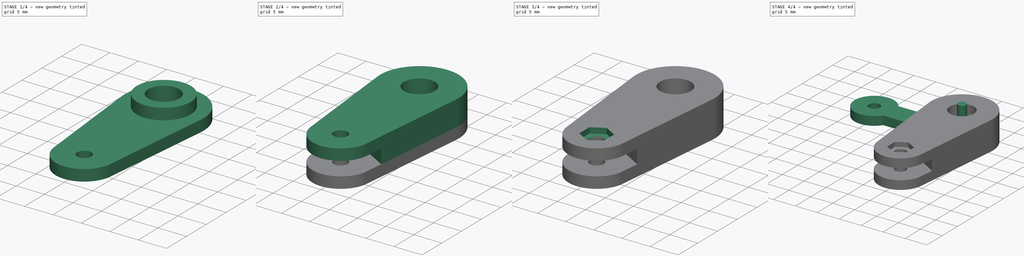
[diagram: build sequence overview — one tinted view per stage of 4, left to right]
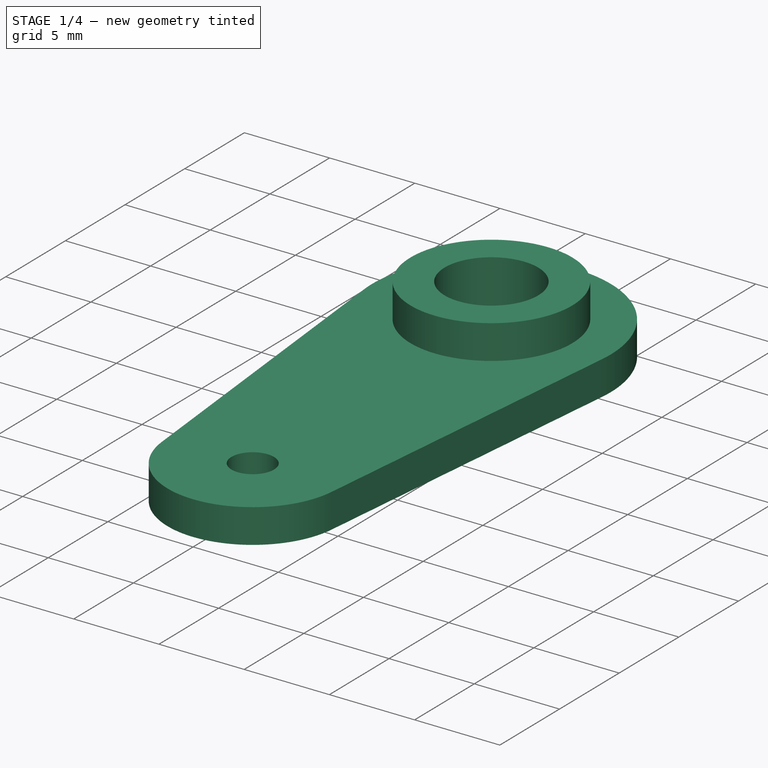
[diagram: stage 1 of 4 — iso view after this stage's code; geometry added in this stage tinted green]
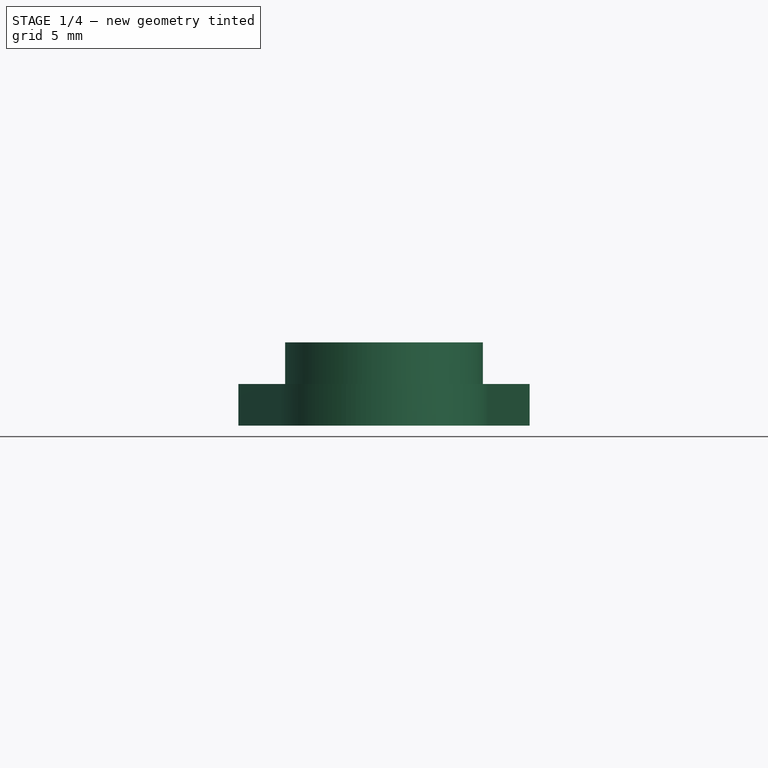
[diagram: stage 1 of 4 — front view after this stage's code; geometry added in this stage tinted green]
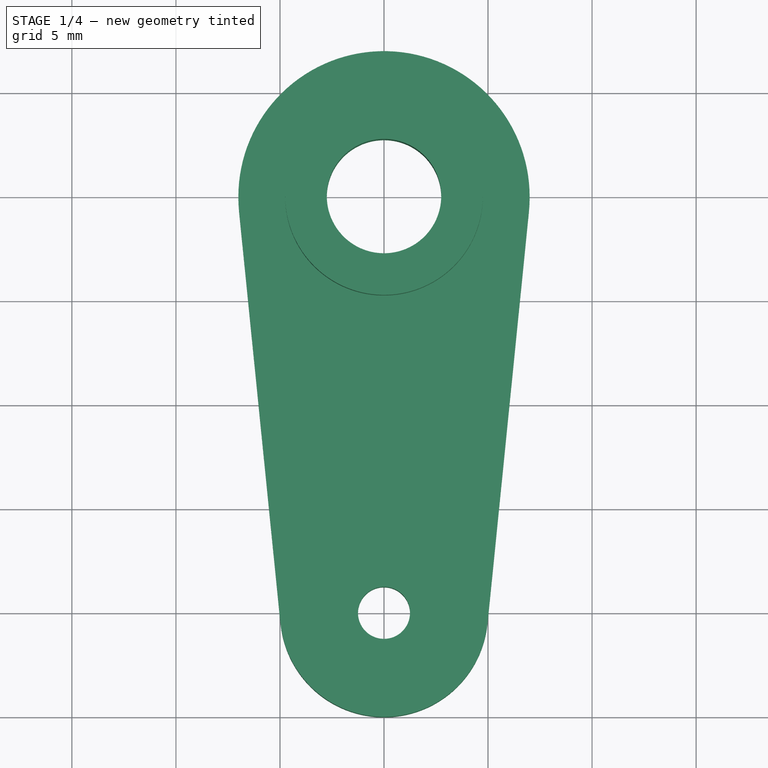
[diagram: stage 1 of 4 — top view after this stage's code; geometry added in this stage tinted green]
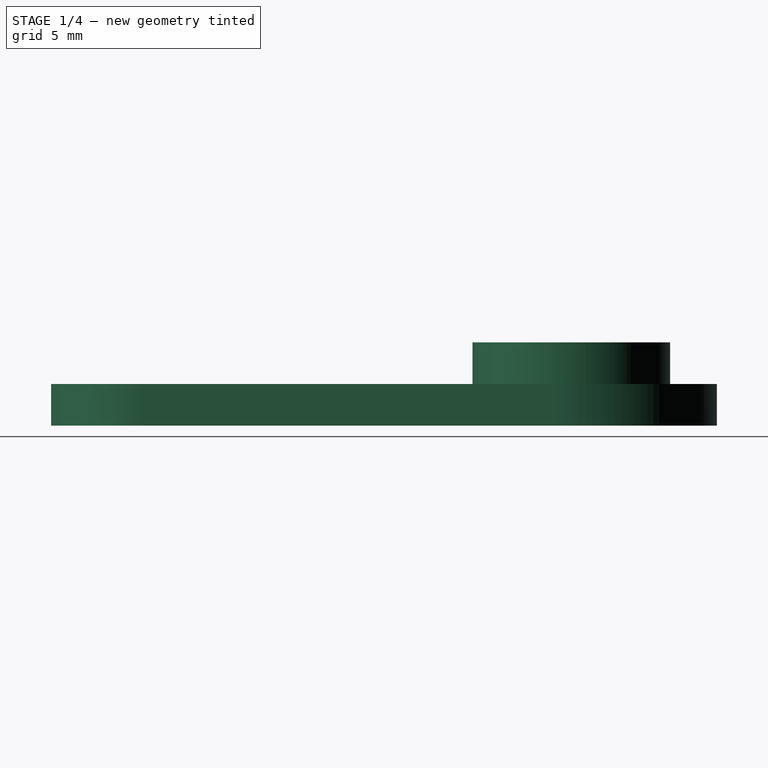
[diagram: stage 1 of 4 — right view after this stage's code; geometry added in this stage tinted green]
FCSTD DOCUMENT  (FreeCAD 0.21R33771 (Git))
Label: remote_case
License: All rights reserved
LicenseURL: https://en.wikipedia.org/wiki/All_rights_reserved
objects: Sketcher::SketchObject×9, PartDesign::Pad×6, PartDesign::Body×5, PartDesign::Plane×3, Part::Feature×1, Spreadsheet::Sheet×1, PartDesign::Revolution×1, PartDesign::Pocket×1, PartDesign::Line×1, PartDesign::Groove×1
note: 37 computed .brp shape members not serialized (recipe doc carries the construction recipe); baked Part::Feature solids carry a one-line shape summary decoded from their .brp

FEATURE [Part::Feature] Part__Feature  label="MG995 v3"
  Placement = pos=(-10,-10,-42.5) rot=(1,0,0;1.5708rad)
  shape: bbox 55.2 x 20 x 46.5 mm, 752 faces, 35 solids (baked)
FEATURE [Sketcher::SketchObject] Sketch
  FullyConstrained = true
  MapMode = 5
  Support = -> [XY_Plane]
  expr: Constraints[10] = <<conf>>.arm_rod_radius
  expr: Constraints[12] = <<conf>>.arm_rotor_internal_diameter
  expr: Constraints[8] = <<conf>>.arm_length
  expr: Constraints[9] = <<conf>>.arm_rotor_radius
  sketch-geometry (6):
    g0: ArcOfCircle CenterX=0 CenterY=0 CenterZ=0 NormalX=0 NormalY=0 NormalZ=1 AngleXU=0 Radius=7 StartAngle=6.18302 EndAngle=9.52495
    g1: ArcOfCircle CenterX=0 CenterY=-20 CenterZ=0 NormalX=0 NormalY=0 NormalZ=1 AngleXU=0 Radius=5 StartAngle=3.24176 EndAngle=6.18302
    g2: LineSegment StartX=-6.96491 StartY=-0.7 StartZ=0 EndX=-4.97494 EndY=-20.5 EndZ=0
    g3: LineSegment StartX=6.96491 StartY=-0.7 StartZ=0 EndX=4.97494 EndY=-20.5 EndZ=0
    g4: Circle CenterX=0 CenterY=0 CenterZ=0 NormalX=0 NormalY=0 NormalZ=1 AngleXU=0 Radius=2.75
    g5: Circle CenterX=0 CenterY=-20 CenterZ=0 NormalX=0 NormalY=0 NormalZ=1 AngleXU=0 Radius=1.25
  constraints (13):
    c: Coincident(g0,g-1)
    c: PointOnObject(g1,g-2)
    c: Tangent(g2,g0) = -1.5708
    c: Tangent(g2,g1) = -1.5708
    c: Tangent(g3,g1) = 1.5708
    c: Tangent(g3,g0) = 1.5708
    c: Coincident(g4,g0)
    c: Coincident(g5,g1)
    c: Distance(g0,g1) = 20
    c: Radius(g0) = 7
    c: Radius(g1) = 5
    c: Diameter(g5) = 2.5
    c: Diameter(g4) = 5.5
FEATURE [Spreadsheet::Sheet] Spreadsheet  label="conf"
  cells = A2='arm_thickness; B2(arm_thickness)==2 mm; A3='arm_length; B3(arm_length)==20 mm; A4='screw_diameter; B4(arm_screw_diameter)==2 mm; A5='rotor_diameter; B5(rotor_diameter)==6 mm; A6='rotor_margin; B6(rotor_margin)==0.5 mm; A7='rotor_length; B7(rotor_length)==4 mm; A8='arm_rotor_internal_diameter; B8(arm_rotor_internal_diameter)==rotor_diameter - rotor_margin; A9='arm_rotor_radius; B9(arm_rotor_radius)==7 mm; A10='arm_rod_radius; B10(arm_rod_radius)==5 mm; A11='arm_dist_a1; B11(arm_dist_a1)==5 mm; A12='arm_inter_thickness; B12(arm_inter_thickness)==2.5 mm; A14='rod_thickness; B14(rod_thickness)==2 mm; A15='rod_end_diameter; B15(rod_end_diameter)==9 mm; A16='rod_length; B16(rod_length)==20 mm; A17='rod_int_diameter; B17(rod_int_diameter)==2.5 mm; A18='rod_width; B18(rod_width)==5 mm; A20='course_max; B20(course_max)==2 * sin(30) * arm_length; A22='screw_length; B22(screw_length)==7.8 mm; A23='screw_diameter; B23(screw_diameter)==1.9 mm; A24='screw_head_height; B24(screw_head_height)==1.2 mm; A25='screw_head_diameter; B25(screw_head_diameter)==3.8 mm; A26='bolt_size; B26(bolt_size)==4 mm; A27='bolt_height; B27(bolt_height)==1.6 mm
FEATURE [PartDesign::Pad] Pad
  Direction = (0,0,1)
  Length = 2
  Length2 = 10
  Profile = -> Sketch
  ReferenceAxis = -> Sketch [N_Axis]
  Type = 0
  expr: Length = <<conf>>.arm_thickness
FEATURE [PartDesign::Plane] DatumPlane  label="DatumArmPlane1"
  Length = 60
  MapMode = 2
  Placement = pos=(0,0,2) rot=(0,0,1;0rad)
  ResizeMode = 0
  Width = 60
  expr: .Placement.Base.z = <<conf>>.arm_thickness
FEATURE [Sketcher::SketchObject] Sketch001  label="SketchArmRotorPipe"
  FullyConstrained = true
  MapMode = 5
  Placement = pos=(0,0,2) rot=(0,0,1;0rad)
  Support = -> [DatumPlane]
  expr: Constraints[2] = <<conf>>.arm_rotor_internal_diameter
  expr: Constraints[3] = <<conf>>.arm_rotor_internal_diameter + 2 * <<conf>>.arm_thickness
  sketch-geometry (2):
    g0: Circle CenterX=0 CenterY=0 CenterZ=0 NormalX=0 NormalY=0 NormalZ=1 AngleXU=0 Radius=2.75
    g1: Circle CenterX=0 CenterY=0 CenterZ=0 NormalX=0 NormalY=0 NormalZ=1 AngleXU=0 Radius=4.75
  constraints (4):
    c: Coincident(g0,g-1)
    c: Coincident(g1,g0)
    c: Diameter(g0) = 5.5
    c: Diameter(g1) = 9.5
FEATURE [PartDesign::Pad] Pad001  label="PadArmRotorPipe"
  BaseFeature = -> Pad
  Direction = (0,0,1)
  Length = 2
  Length2 = 10
  Profile = -> Sketch001
  ReferenceAxis = -> Sketch001 [N_Axis]
  Type = 0
  expr: Length = <<conf>>.rotor_length - <<conf>>.arm_thickness
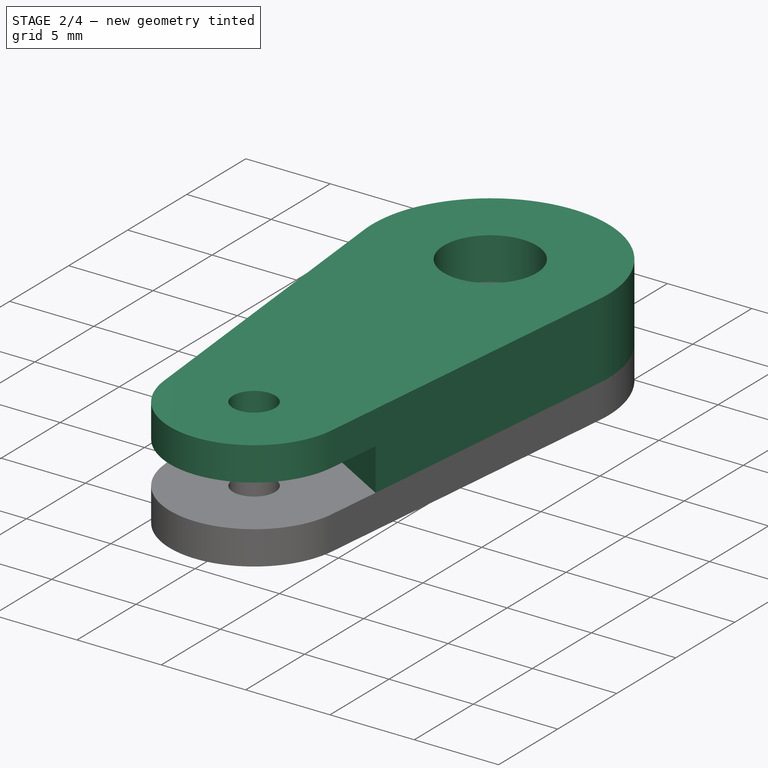
[diagram: stage 2 of 4 — iso view after this stage's code; geometry added in this stage tinted green]
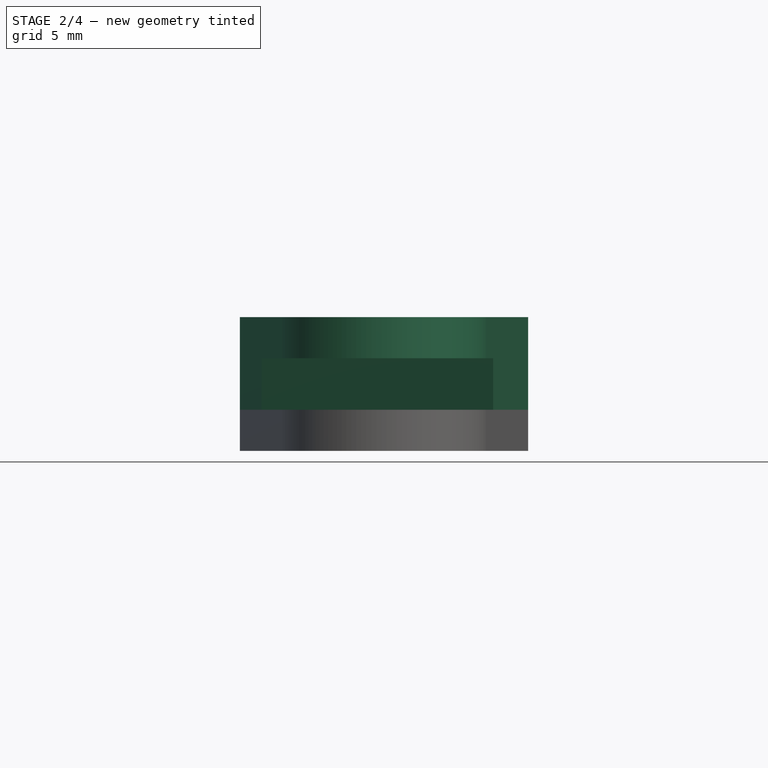
[diagram: stage 2 of 4 — front view after this stage's code; geometry added in this stage tinted green]
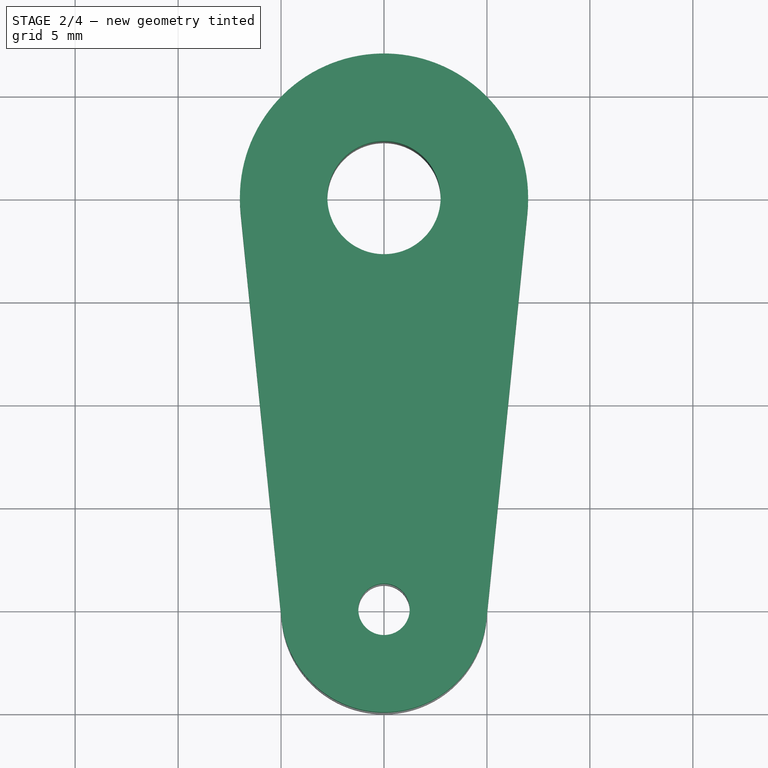
[diagram: stage 2 of 4 — top view after this stage's code; geometry added in this stage tinted green]
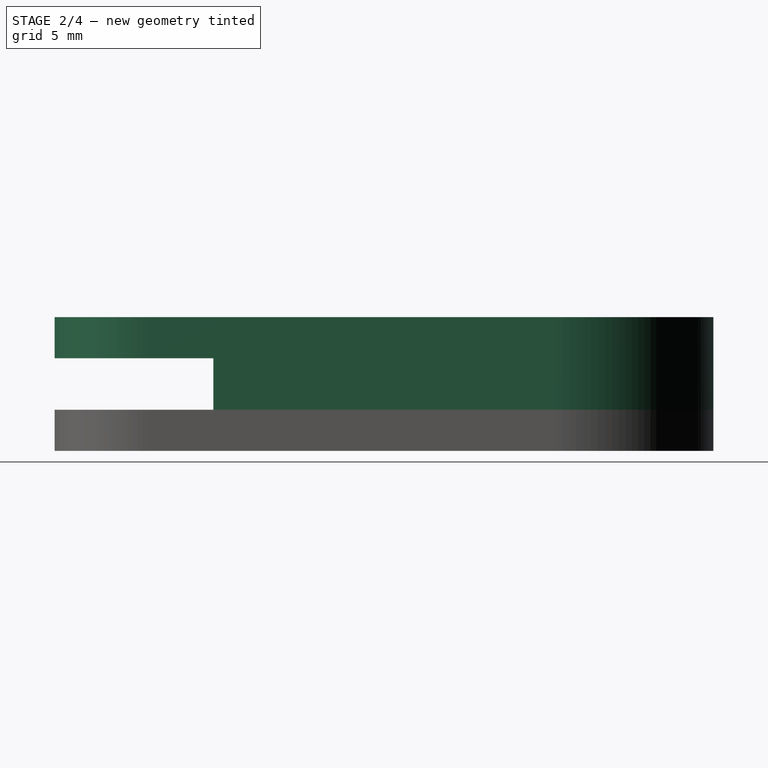
[diagram: stage 2 of 4 — right view after this stage's code; geometry added in this stage tinted green]
FEATURE [Sketcher::SketchObject] Sketch002  label="SketchArmInter"
  FullyConstrained = true
  MapMode = 5
  Placement = pos=(0,0,2) rot=(0,0,1;0rad)
  Support = -> [DatumPlane]
  expr: Constraints[15] = <<conf>>.arm_rotor_internal_diameter
  expr: Constraints[18] = <<conf>>.arm_rotor_radius
  expr: Constraints[2] = <<conf>>.arm_length
  expr: Constraints[3] = <<conf>>.arm_rod_radius
  sketch-geometry (10):
    g0: LineSegment StartX=-4.97494 StartY=-20.5 StartZ=0 EndX=-6.96491 EndY=-0.7 EndZ=0
    g1: LineSegment StartX=4.97494 StartY=-20.5 StartZ=0 EndX=6.96491 EndY=-0.7 EndZ=0
    g2: ArcOfCircle CenterX=0 CenterY=0 CenterZ=0 NormalX=0 NormalY=0 NormalZ=1 AngleXU=0 Radius=7 StartAngle=6.18302 EndAngle=9.52495
    g3: ArcOfCircle CenterX=0 CenterY=-20 CenterZ=0 NormalX=0 NormalY=0 NormalZ=1 AngleXU=0 Radius=5 StartAngle=3.24176 EndAngle=6.18302
    g4: LineSegment StartX=-5.95075 StartY=-10.7908 StartZ=0 EndX=5.29803 EndY=-17.2853 EndZ=0
    g5: ArcOfCircle CenterX=0 CenterY=0 CenterZ=0 NormalX=0 NormalY=0 NormalZ=1 AngleXU=0 Radius=7 StartAngle=6.18302 EndAngle=9.52495
    g6: LineSegment StartX=-6.96491 StartY=-0.7 StartZ=0 EndX=-5.95075 EndY=-10.7908 EndZ=0
    g7: LineSegment StartX=6.96491 StartY=-0.7 StartZ=0 EndX=5.29803 EndY=-17.2853 EndZ=0
    g8: Circle CenterX=0 CenterY=0 CenterZ=0 NormalX=0 NormalY=0 NormalZ=1 AngleXU=0 Radius=2.75
    g9: Circle CenterX=0 CenterY=-20 CenterZ=0 NormalX=0 NormalY=0 NormalZ=1 AngleXU=0 Radius=5
  constraints (23):
    c: Coincident(g2,g-1)
    c: PointOnObject(g3,g-2)
    c: Distance(g2,g3) = 20
    c: Radius(g3) = 5
    c: Tangent(g2,g0) = 1.5708
    c: Tangent(g2,g1) = -1.5708
    c: Tangent(g3,g0) = 1.5708
    c: Tangent(g3,g1) = -1.5708
    c: PointOnObject(g4,g0)
    c: Angle(g-2,g4) = 1.0472
    c: Coincident(g5,g2)
    c: Coincident(g5,g0)
    c: Coincident(g6,g5)
    c: Coincident(g6,g4)
    c: Coincident(g8,g5)
    c: Diameter(g8) = 5.5
    c: Coincident(g9,g3)
    c: PointOnObject(g0,g9)
    c: Radius(g5) = 7
    c: Coincident(g4,g7)
    c: PointOnObject(g4,g1)
    c: Tangent(g4,g9)
    c: Tangent(g7,g5) = 1.5708
FEATURE [PartDesign::Pad] Pad002
  BaseFeature = -> Pad001
  Direction = (0,0,1)
  Length = 2.5
  Length2 = 10
  Profile = -> Sketch002
  ReferenceAxis = -> Sketch002 [N_Axis]
  Type = 0
  expr: Length = <<conf>>.arm_inter_thickness
FEATURE [PartDesign::Plane] DatumPlane001
  Length = 60
  MapMode = 2
  Placement = pos=(0,0,4.5) rot=(0,0,1;0rad)
  ResizeMode = 0
  Width = 60
  expr: .Placement.Base.z = <<conf>>.arm_thickness + <<conf>>.arm_inter_thickness
FEATURE [Sketcher::SketchObject] Sketch003
  FullyConstrained = true
  MapMode = 5
  Placement = pos=(0,0,4.5) rot=(0,0,1;0rad)
  Support = -> [DatumPlane001]
  expr: Constraints[10] = Sketch.Constraints[10]
  expr: Constraints[11] = Sketch.Constraints[11]
  expr: Constraints[12] = Sketch.Constraints[12]
  expr: Constraints[8] = Sketch.Constraints[8]
  expr: Constraints[9] = Sketch.Constraints[9]
  sketch-geometry (6):
    g0: ArcOfCircle CenterX=0 CenterY=0 CenterZ=0 NormalX=0 NormalY=0 NormalZ=1 AngleXU=0 Radius=7 StartAngle=6.18302 EndAngle=9.52495
    g1: ArcOfCircle CenterX=0 CenterY=-20 CenterZ=0 NormalX=0 NormalY=0 NormalZ=1 AngleXU=0 Radius=5 StartAngle=3.24176 EndAngle=6.18302
    g2: LineSegment StartX=-6.96491 StartY=-0.7 StartZ=0 EndX=-4.97494 EndY=-20.5 EndZ=0
    g3: LineSegment StartX=6.96491 StartY=-0.7 StartZ=0 EndX=4.97494 EndY=-20.5 EndZ=0
    g4: Circle CenterX=0 CenterY=0 CenterZ=0 NormalX=0 NormalY=0 NormalZ=1 AngleXU=0 Radius=2.75
    g5: Circle CenterX=0 CenterY=-20 CenterZ=0 NormalX=0 NormalY=0 NormalZ=1 AngleXU=0 Radius=1.25
  constraints (13):
    c: Coincident(g0,g-1)
    c: PointOnObject(g1,g-2)
    c: Tangent(g2,g0) = -1.5708
    c: Tangent(g2,g1) = -1.5708
    c: Tangent(g3,g1) = 1.5708
    c: Tangent(g3,g0) = 1.5708
    c: Coincident(g4,g0)
    c: Coincident(g5,g1)
    c: Distance(g0,g1) = 20
    c: Radius(g0) = 7
    c: Radius(g1) = 5
    c: Diameter(g5) = 2.5
    c: Diameter(g4) = 5.5
FEATURE [PartDesign::Pad] Pad003
  BaseFeature = -> Pad002
  Direction = (0,0,1)
  Length = 2
  Length2 = 10
  Profile = -> Sketch003
  ReferenceAxis = -> Sketch003 [N_Axis]
  Type = 0
  expr: Length = <<conf>>.arm_thickness
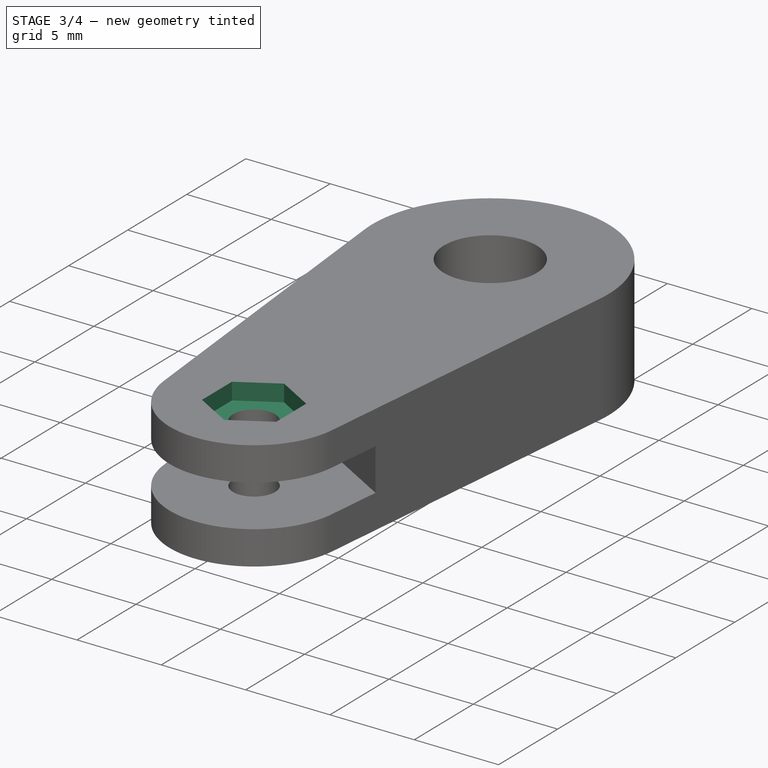
[diagram: stage 3 of 4 — iso view after this stage's code; geometry added in this stage tinted green]
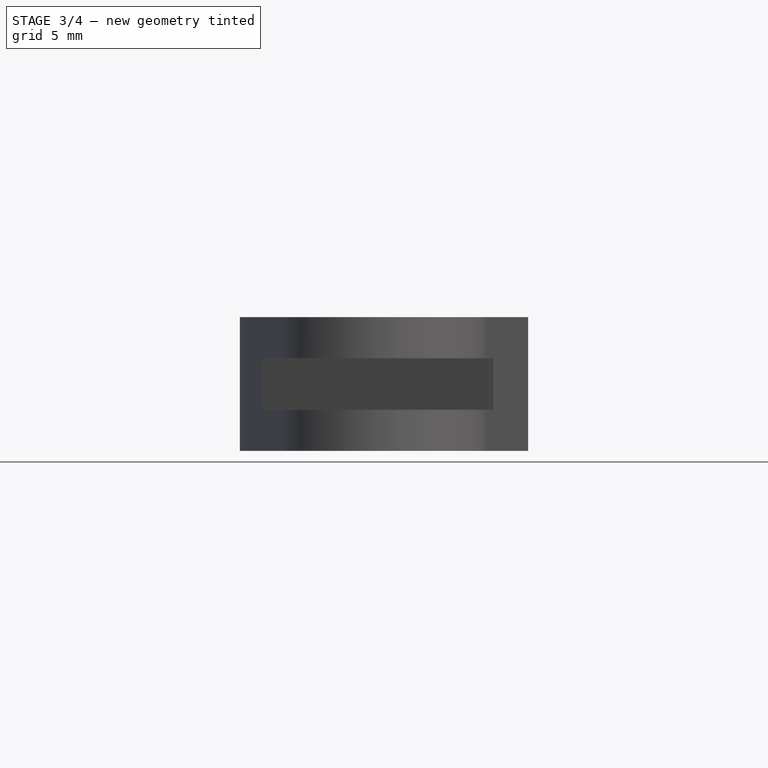
[diagram: stage 3 of 4 — front view after this stage's code; geometry added in this stage tinted green]
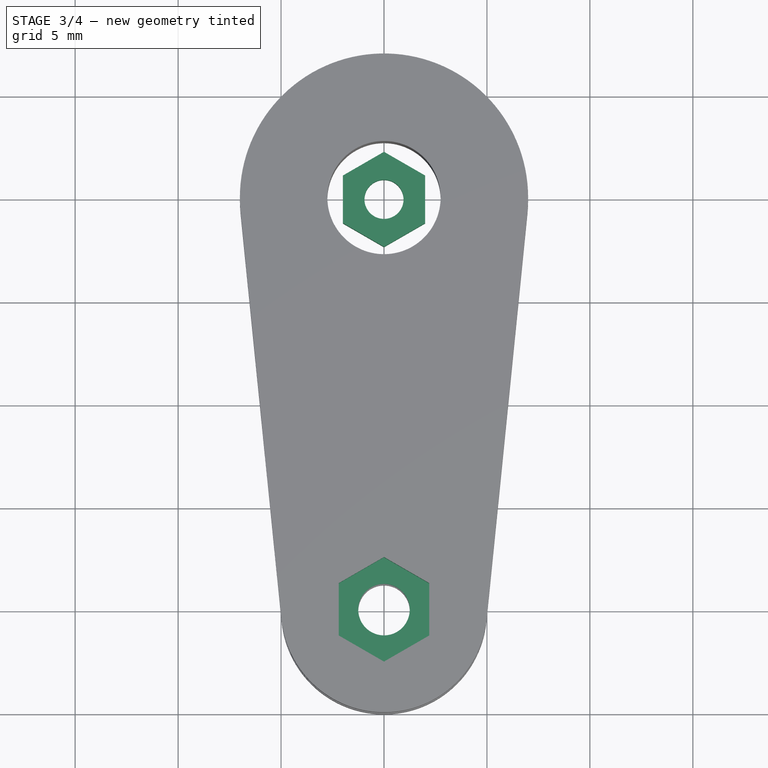
[diagram: stage 3 of 4 — top view after this stage's code; geometry added in this stage tinted green]
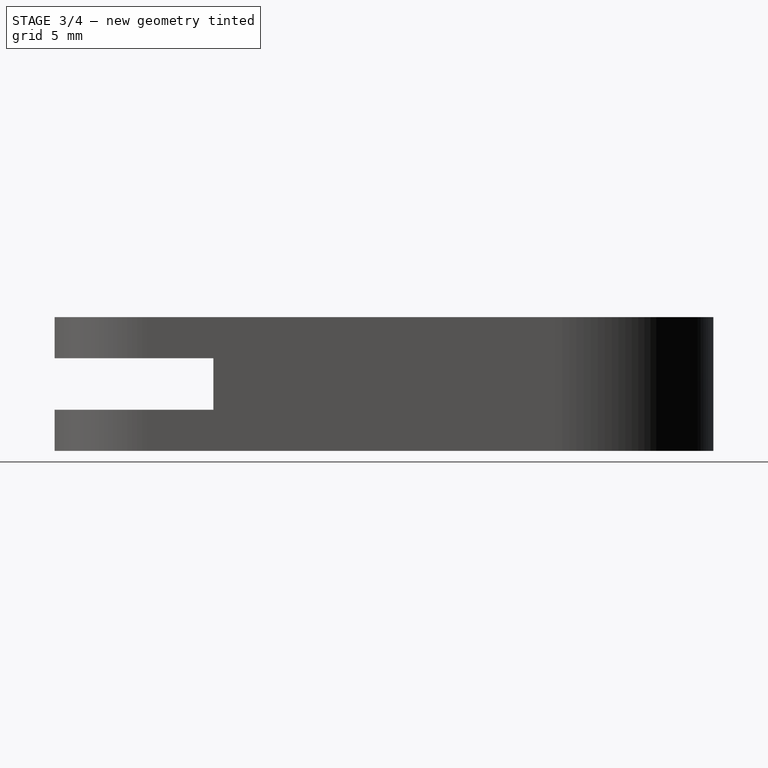
[diagram: stage 3 of 4 — right view after this stage's code; geometry added in this stage tinted green]
FEATURE [PartDesign::Body] Body003  label="M2Screw"
  Group = -> [Sketch005,Revolution]
  Origin = -> Origin003
  Placement = pos=(0,-20,0) rot=(0,0,1;0rad)
  Tip = -> Revolution
FEATURE [Sketcher::SketchObject] Sketch006
  FullyConstrained = true
  MapMode = 5
  Support = -> [XY_Plane004]
  expr: Constraints[19] = <<conf>>.bolt_size
  expr: Constraints[21] = <<conf>>.screw_diameter
  sketch-geometry (8):
    g0: LineSegment StartX=2 StartY=-1.1547 StartZ=0 EndX=2 EndY=1.1547 EndZ=0
    g1: LineSegment StartX=2 StartY=1.1547 StartZ=0 EndX=-7.79e-14 EndY=2.3094 EndZ=0
    g2: LineSegment StartX=-7.79e-14 StartY=2.3094 StartZ=0 EndX=-2 EndY=1.1547 EndZ=0
    g3: LineSegment StartX=-2 StartY=1.1547 StartZ=0 EndX=-2 EndY=-1.1547 EndZ=0
    g4: LineSegment StartX=-2 StartY=-1.1547 StartZ=0 EndX=4.97e-14 EndY=-2.3094 EndZ=0
    g5: LineSegment StartX=4.97e-14 StartY=-2.3094 StartZ=0 EndX=2 EndY=-1.1547 EndZ=0
    g6: Circle CenterX=0 CenterY=0 CenterZ=0 NormalX=0 NormalY=0 NormalZ=1 AngleXU=0 Radius=2.3094
    g7: Circle CenterX=0 CenterY=0 CenterZ=0 NormalX=0 NormalY=0 NormalZ=1 AngleXU=0 Radius=0.95
  constraints (18):
    c: Coincident(g0,g1)
    c: Coincident(g1,g2)
    c: Coincident(g2,g3)
    c: Coincident(g3,g4)
    c: Coincident(g4,g5)
    c: Coincident(g5,g0)
    c: Equal(g0, g1-g5) x5
    c: PointOnObject(g0,g6)
    c: PointOnObject(g1,g6)
    c: PointOnObject(g2,g6)
    c: PointOnObject(g3,g6)
    c: PointOnObject(g4,g6)
    c: PointOnObject(g5,g6)
    c: Coincident(g6,g-1)
    c: Vertical(g0)
    c: DistanceX(g2,g0) = 4
    c: Coincident(g7,g6)
    c: Diameter(g7) = 1.9
FEATURE [PartDesign::Pad] Pad005
  Direction = (0,0,1)
  Length = 1.6
  Length2 = 10
  Profile = -> Sketch006
  ReferenceAxis = -> Sketch006 [N_Axis]
  Type = 0
  expr: Length = <<conf>>.bolt_height
FEATURE [PartDesign::Body] Body004  label="M2Bolt"
  Group = -> [Sketch006,Pad005]
  Origin = -> Origin004
  Placement = pos=(0,-20,5.5) rot=(0,0,1;0rad)
  Tip = -> Pad005
FEATURE [PartDesign::Plane] DatumPlane002
  AttachmentOffset = pos=(0,0,6.5) rot=(0,0,1;0rad)
  Length = 60
  MapMode = 5
  Placement = pos=(0,0,6.5) rot=(0,0,1;0rad)
  ResizeMode = 0
  Support = -> [XY_Plane]
  Width = 60
  expr: .AttachmentOffset.Base.z = 2 * <<conf>>.arm_thickness + <<conf>>.arm_inter_thickness
FEATURE [Sketcher::SketchObject] Sketch007
  FullyConstrained = true
  MapMode = 5
  Placement = pos=(0,0,6.5) rot=(0,0,1;0rad)
  Support = -> [DatumPlane002]
  expr: Constraints[19] = <<conf>>.arm_length
  expr: Constraints[20] = <<conf>>.bolt_size + 0.4 mm
  sketch-geometry (7):
    g0: LineSegment StartX=2.2 StartY=-21.2702 StartZ=0 EndX=2.2 EndY=-18.7298 EndZ=0
    g1: LineSegment StartX=2.2 StartY=-18.7298 StartZ=0 EndX=4e-16 EndY=-17.4597 EndZ=0
    g2: LineSegment StartX=4e-16 StartY=-17.4597 StartZ=0 EndX=-2.2 EndY=-18.7298 EndZ=0
    g3: LineSegment StartX=-2.2 StartY=-18.7298 StartZ=0 EndX=-2.2 EndY=-21.2702 EndZ=0
    g4: LineSegment StartX=-2.2 StartY=-21.2702 StartZ=0 EndX=4e-16 EndY=-22.5403 EndZ=0
    g5: LineSegment StartX=4e-16 StartY=-22.5403 StartZ=0 EndX=2.2 EndY=-21.2702 EndZ=0
    g6: Circle CenterX=0 CenterY=-20 CenterZ=0 NormalX=0 NormalY=0 NormalZ=1 AngleXU=0 Radius=2.54034
  constraints (17):
    c: Coincident(g0,g1)
    c: Coincident(g1,g2)
    c: Coincident(g2,g3)
    c: Coincident(g3,g4)
    c: Coincident(g4,g5)
    c: Coincident(g5,g0)
    c: Equal(g0, g1-g5) x5
    c: PointOnObject(g0,g6)
    c: PointOnObject(g1,g6)
    c: PointOnObject(g2,g6)
    c: PointOnObject(g3,g6)
    c: PointOnObject(g4,g6)
    c: PointOnObject(g5,g6)
    c: PointOnObject(g6,g-2)
    c: Parallel(g0,g-2)
    c: DistanceY(g6,g-1) = 20
    c: DistanceX(g2,g0) = 4.4
FEATURE [PartDesign::Pocket] Pocket
  BaseFeature = -> Pad003
  Direction = (0,0,-1)
  Length = 1
  Length2 = 5
  Profile = -> Sketch007
  ReferenceAxis = -> Sketch007 [N_Axis]
  Type = 0
  expr: Length = <<conf>>.arm_thickness / 2
FEATURE [PartDesign::Line] DatumLine
  AttacherType = Attacher::AttachEngineLine
  AttachmentOffset = pos=(0,-20,0) rot=(0,0,1;0rad)
  Length = 20
  MapMode = 29
  Placement = pos=(0,-20,2.2e-15) rot=(0,0,1;0rad)
  ResizeMode = 0
  Support = -> [Z_Axis]
  expr: .AttachmentOffset.Base.y = -<<conf>>.arm_length
FEATURE [Sketcher::SketchObject] Sketch008
  FullyConstrained = true
  MapMode = 5
  Placement = pos=(0,0,0) rot=(0.57735,0.57735,0.57735;2.0944rad)
  Support = -> [YZ_Plane]
  expr: Constraints[10] = <<conf>>.arm_thickness / 2
  expr: Constraints[8] = <<conf>>.screw_head_diameter / 2
  expr: Constraints[9] = <<conf>>.arm_length
  sketch-geometry (4):
    g0: LineSegment StartX=-20 StartY=0 StartZ=0 EndX=-18.1 EndY=0 EndZ=0
    g1: LineSegment StartX=-18.1 StartY=0 StartZ=0 EndX=-18.9 EndY=1 EndZ=0
    g2: LineSegment StartX=-18.9 StartY=1 StartZ=0 EndX=-20 EndY=1 EndZ=0
    g3: LineSegment StartX=-20 StartY=1 StartZ=0 EndX=-20 EndY=0 EndZ=0
  constraints (12):
    c: PointOnObject(g0,g-1)
    c: PointOnObject(g0,g-1)
    c: Coincident(g0,g1)
    c: Coincident(g1,g2)
    c: Horizontal(g2)
    c: Coincident(g2,g3)
    c: Coincident(g3,g0)
    c: Vertical(g3)
    c: DistanceX(g0,g0) = 1.9
    c: DistanceX(g0,g-1) = 20
    c: DistanceY(g0,g1) = 1
    c: DistanceX(g1,g0) = 0.8
FEATURE [PartDesign::Groove] Groove
  Angle = 360
  Axis = (1e-16,1e-16,1)
  Base = (0,-20,2.2e-15)
  BaseFeature = -> Pocket
  Profile = -> Sketch008
  ReferenceAxis = -> DatumLine
  Reversed = true
FEATURE [PartDesign::Body] Body  label="Arm"
  Group = -> [Sketch,Pad,DatumPlane,Sketch001,Pad001,Sketch002,Pad002,DatumPlane001,Sketch003,Pad003,DatumPlane002,Sketch007,Pocket,DatumLine,Sketch008,Groove]
  Origin = -> Origin
  Tip = -> Groove
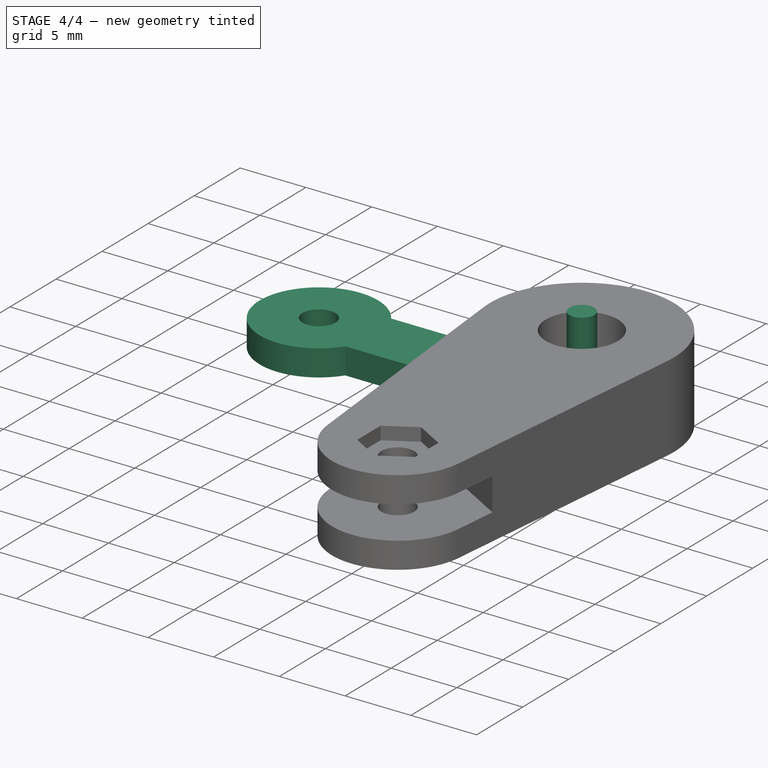
[diagram: stage 4 of 4 — iso view after this stage's code; geometry added in this stage tinted green]
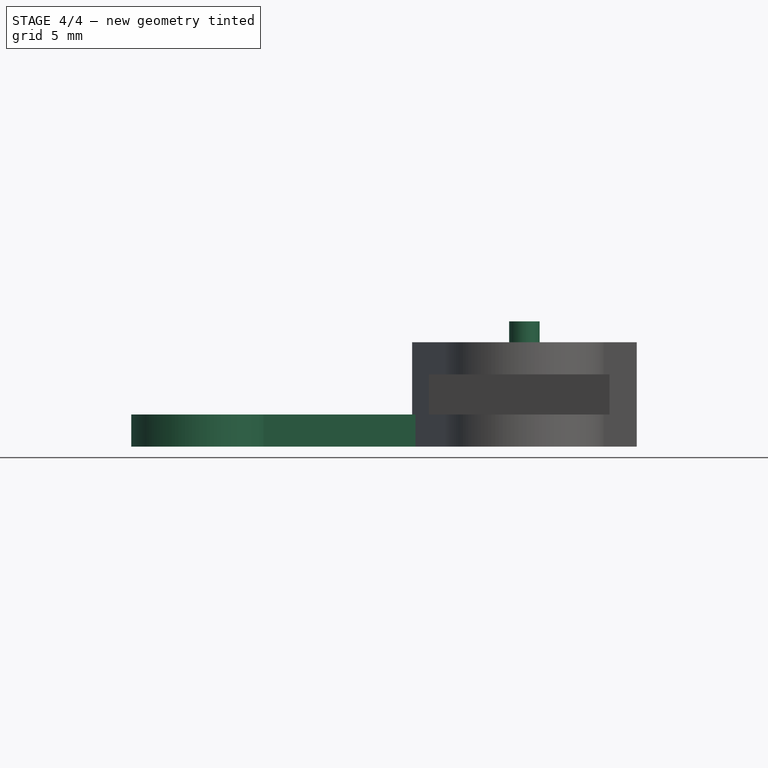
[diagram: stage 4 of 4 — front view after this stage's code; geometry added in this stage tinted green]
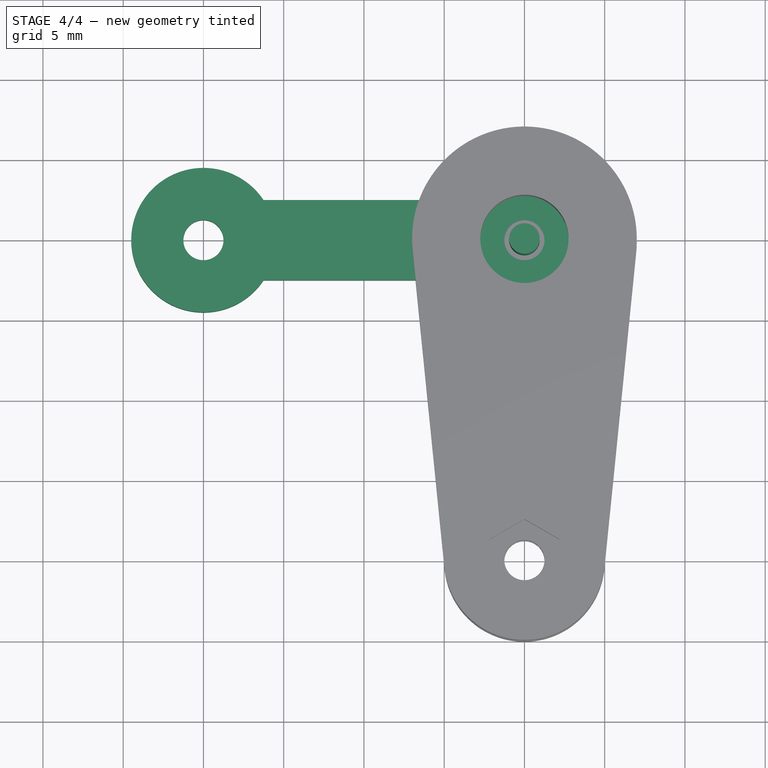
[diagram: stage 4 of 4 — top view after this stage's code; geometry added in this stage tinted green]
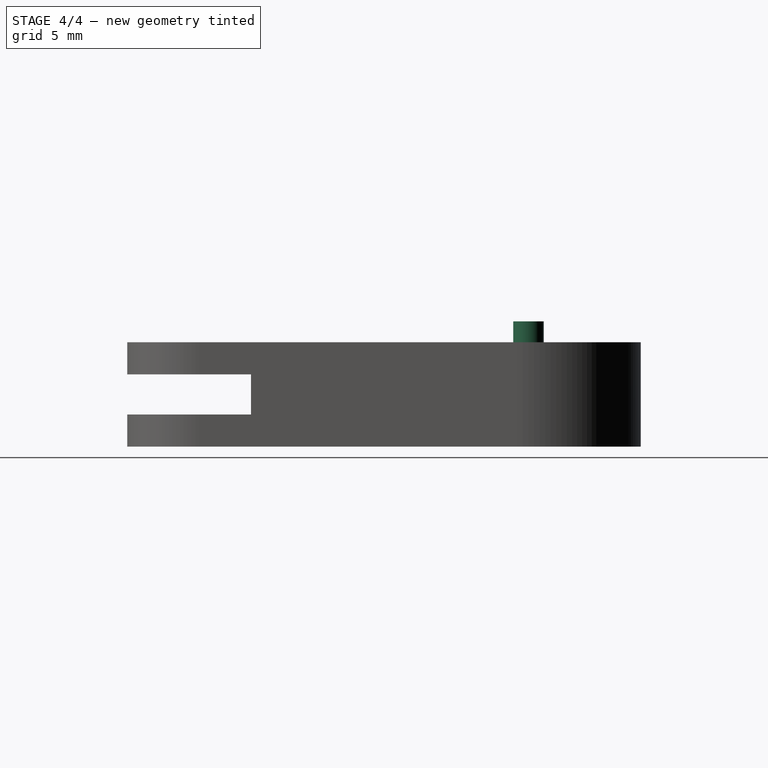
[diagram: stage 4 of 4 — right view after this stage's code; geometry added in this stage tinted green]
FEATURE [Sketcher::SketchObject] Sketch004
  FullyConstrained = true
  MapMode = 5
  Support = -> [XY_Plane001]
  expr: Constraints[11] = <<conf>>.rod_width
  expr: Constraints[13] = <<conf>>.rod_int_diameter
  expr: Constraints[8] = <<conf>>.rod_end_diameter
  expr: Constraints[9] = <<conf>>.rod_length
  sketch-geometry (6):
    g0: ArcOfCircle CenterX=0 CenterY=0 CenterZ=0 NormalX=0 NormalY=0 NormalZ=1 AngleXU=0 Radius=4.5 StartAngle=3.73062 EndAngle=8.83575
    g1: ArcOfCircle CenterX=-20 CenterY=0 CenterZ=0 NormalX=0 NormalY=0 NormalZ=1 AngleXU=0 Radius=4.5 StartAngle=0.589031 EndAngle=5.69415
    g2: LineSegment StartX=-3.74166 StartY=2.5 StartZ=0 EndX=-16.2583 EndY=2.5 EndZ=0
    g3: LineSegment StartX=-3.74166 StartY=-2.5 StartZ=0 EndX=-16.2583 EndY=-2.5 EndZ=0
    g4: Circle CenterX=0 CenterY=0 CenterZ=0 NormalX=0 NormalY=0 NormalZ=1 AngleXU=0 Radius=1.25
    g5: Circle CenterX=-20 CenterY=0 CenterZ=0 NormalX=0 NormalY=0 NormalZ=1 AngleXU=0 Radius=1.25
  constraints (16):
    c: Coincident(g0,g-1)
    c: Coincident(g2,g0)
    c: Coincident(g2,g1)
    c: Horizontal(g2)
    c: Coincident(g3,g0)
    c: Coincident(g3,g1)
    c: Horizontal(g3)
    c: Equal(g0,g1)
    c: Diameter(g0) = 9
    c: DistanceX(g1,g0) = 20
    c: Symmetric(g1,g1,g-1)
    c: DistanceY(g1,g1) = 5
    c: Coincident(g4,g0)
    c: Diameter(g4) = 2.5
    c: Coincident(g5,g1)
    c: Equal(g4,g5)
FEATURE [PartDesign::Pad] Pad004  label="PadRod"
  Direction = (0,0,1)
  Length = 2
  Length2 = 10
  Profile = -> Sketch004
  ReferenceAxis = -> Sketch004 [N_Axis]
  Type = 0
  expr: Length = <<conf>>.rod_thickness
FEATURE [PartDesign::Body] Body001  label="Rod"
  Group = -> [Sketch004,Pad004]
  Origin = -> Origin001
  Placement = pos=(0,-20,2) rot=(0,0,1;0rad)
  Tip = -> Pad004
  expr: .Placement.Base.y = -<<conf>>.arm_length
  expr: .Placement.Base.z = <<conf>>.arm_thickness
FEATURE [PartDesign::Body] Body002  label="Cart"
  Origin = -> Origin002
  Placement = pos=(-20,-20,0) rot=(0,0,1;0rad)
  expr: .Placement.Base.x = -<<conf>>.rod_length
  expr: .Placement.Base.y = -<<conf>>.arm_length
FEATURE [Sketcher::SketchObject] Sketch005
  FullyConstrained = true
  MapMode = 5
  Placement = pos=(0,0,0) rot=(1,0,0;1.5708rad)
  Support = -> [XZ_Plane003]
  expr: Constraints[10] = <<conf>>.screw_length
  expr: Constraints[11] = <<conf>>.screw_diameter / 2
  expr: Constraints[12] = <<conf>>.screw_head_height
  expr: Constraints[13] = <<conf>>.screw_head_diameter / 2
  sketch-geometry (5):
    g0: LineSegment StartX=0 StartY=7.8 StartZ=0 EndX=0.95 EndY=7.8 EndZ=0
    g1: LineSegment StartX=0.95 StartY=7.8 StartZ=0 EndX=0.95 EndY=1.2 EndZ=0
    g2: LineSegment StartX=0.95 StartY=1.2 StartZ=0 EndX=1.9 EndY=0 EndZ=0
    g3: LineSegment StartX=1.9 StartY=0 StartZ=0 EndX=0 EndY=0 EndZ=0
    g4: LineSegment StartX=0 StartY=0 StartZ=0 EndX=0 EndY=7.8 EndZ=0
  constraints (14):
    c: Horizontal(g0)
    c: Coincident(g0,g1)
    c: Vertical(g1)
    c: Coincident(g1,g2)
    c: PointOnObject(g2,g-1)
    c: Coincident(g2,g3)
    c: Coincident(g3,g-1)
    c: Coincident(g3,g4)
    c: Coincident(g4,g0)
    c: PointOnObject(g0,g-2)
    c: DistanceY(g3,g0) = 7.8
    c: DistanceX(g0,g0) = 0.95
    c: DistanceY(g3,g1) = 1.2
    c: DistanceX(g3,g3) = 1.9
FEATURE [PartDesign::Revolution] Revolution
  Angle = 360
  Axis = (0,-2e-16,1)
  Base = (0,0,0)
  Placement = pos=(0,0,0) rot=(1,0,0;1.5708rad)
  Profile = -> Sketch005
  ReferenceAxis = -> Sketch005 [V_Axis]
  Reversed = true
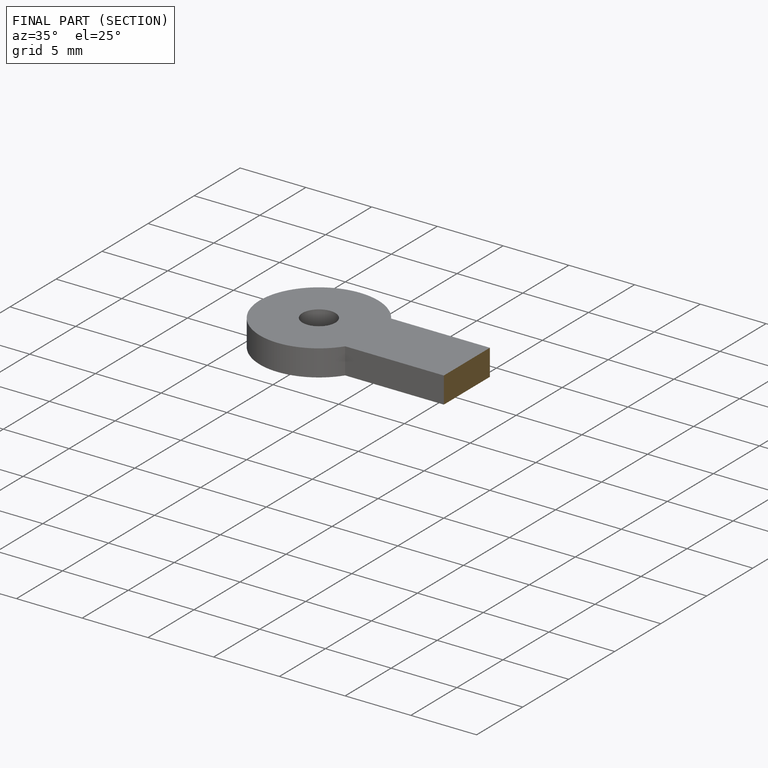
[diagram: finished part — half-section view (interior)]
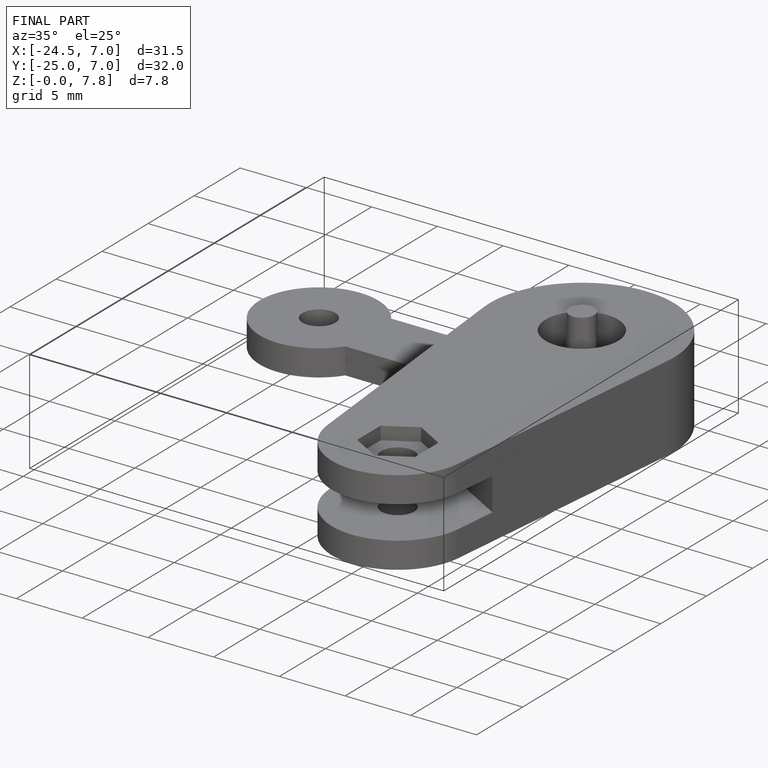
[diagram: finished part — iso view with bounding-box wireframe]
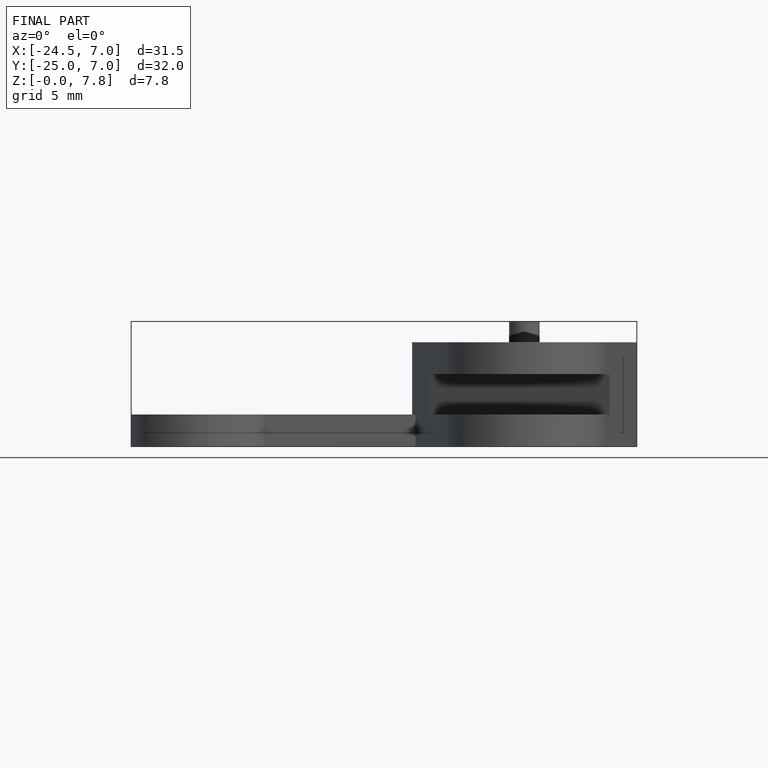
[diagram: finished part — front view with bounding-box wireframe]
